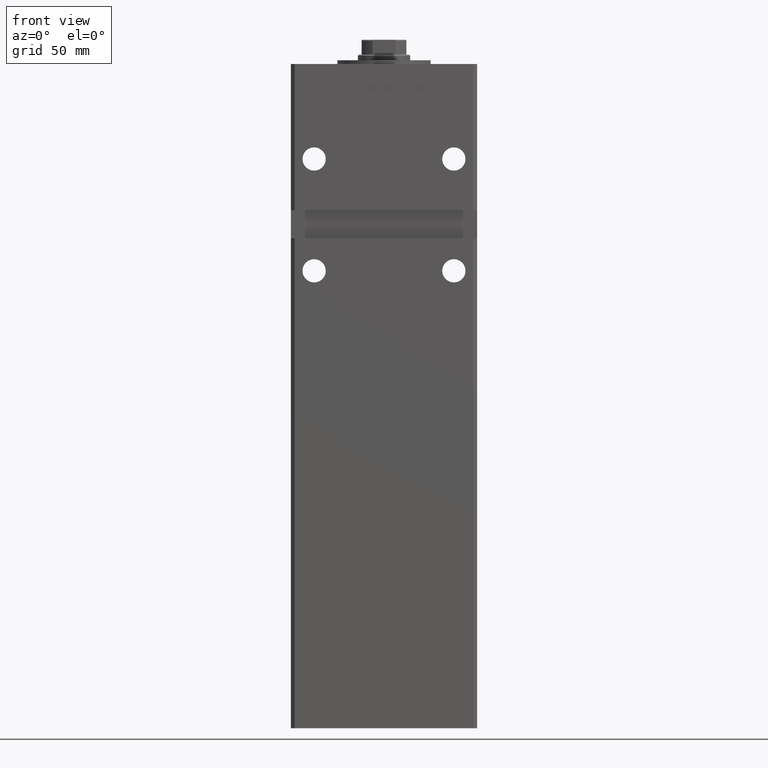
[diagram: clean part render]
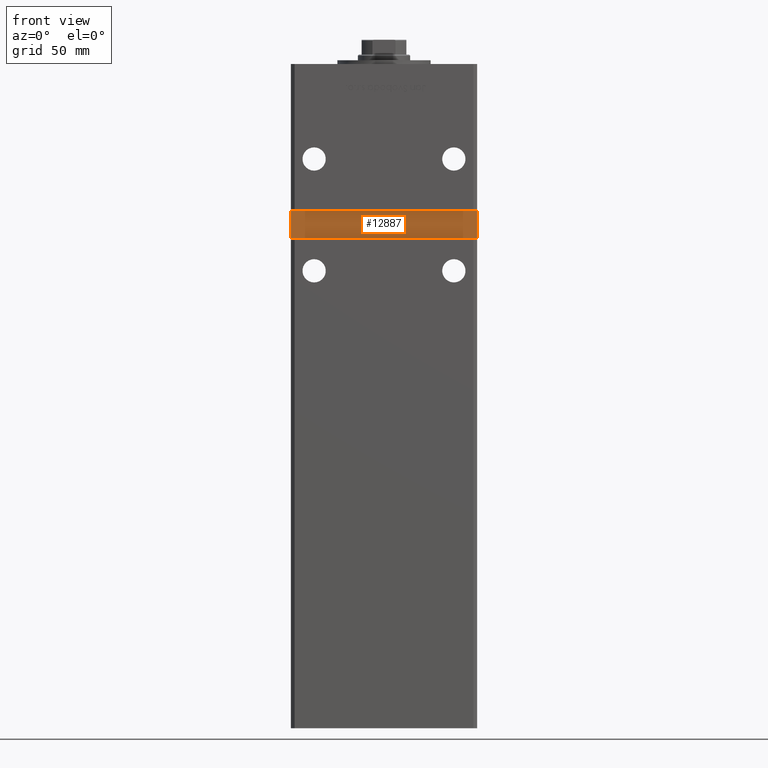
[diagram: same view with one face highlighted and labeled with its STEP entity id]
A machine part, front view. The second image highlights one B-rep face of the part: STEP entity #12887.
In plain terms, the highlighted planar face has unit normal (0, -1, 0).
Its self-contained STEP definition (entity closure, byte-faithful):
#17 = CARTESIAN_POINT ( 'NONE',  ( 0.000000000000000000, -38.50000000000000000, 0.000000000000000000 ) ) ;
#677 = VERTEX_POINT ( 'NONE', #35989 ) ;
#2220 = ORIENTED_EDGE ( 'NONE', *, *, #32551, .T. ) ;
#3829 = VECTOR ( 'NONE', #29582, 1000.000000000000000 ) ;
#3933 = EDGE_CURVE ( 'NONE', #50208, #16414, #38137, .T. ) ;
#4052 = FACE_OUTER_BOUND ( 'NONE', #53124, .T. ) ;
#5809 = EDGE_CURVE ( 'NONE', #9020, #677, #13158, .T. ) ;
#9020 = VERTEX_POINT ( 'NONE', #44010 ) ;
#11464 = VECTOR ( 'NONE', #13637, 1000.000000000000000 ) ;
#12887 = ADVANCED_FACE ( 'NONE', ( #4052 ), #12910, .T. ) ;
#12910 = PLANE ( 'NONE',  #46008 ) ;
#13158 = LINE ( 'NONE', #37139, #3829 ) ;
#13637 = DIRECTION ( 'NONE',  ( 0.000000000000000000, 0.000000000000000000, -1.000000000000000000 ) ) ;
#14602 = LINE ( 'NONE', #47455, #15330 ) ;
#15330 = VECTOR ( 'NONE', #18904, 1000.000000000000000 ) ;
#16328 = LINE ( 'NONE', #37328, #25114 ) ;
#16412 = DIRECTION ( 'NONE',  ( 0.000000000000000000, -0.000000000000000000, -1.000000000000000000 ) ) ;
#16414 = VERTEX_POINT ( 'NONE', #40232 ) ;
#18904 = DIRECTION ( 'NONE',  ( 1.000000000000000000, 0.000000000000000000, 0.000000000000000000 ) ) ;
#19115 = CARTESIAN_POINT ( 'NONE',  ( -49.99999999999998579, -38.50000000000000000, 259.0000000000000000 ) ) ;
#22076 = EDGE_CURVE ( 'NONE', #16414, #9020, #14602, .T. ) ;
#25114 = VECTOR ( 'NONE', #32495, 1000.000000000000000 ) ;
#29582 = DIRECTION ( 'NONE',  ( -0.000000000000000000, -0.000000000000000000, 1.000000000000000000 ) ) ;
#32495 = DIRECTION ( 'NONE',  ( -1.000000000000000000, -0.000000000000000000, -0.000000000000000000 ) ) ;
#32551 = EDGE_CURVE ( 'NONE', #677, #50208, #16328, .T. ) ;
#34102 = CARTESIAN_POINT ( 'NONE',  ( -49.99999999999998579, -38.50000000000000000, 259.0000000000000000 ) ) ;
#35846 = ORIENTED_EDGE ( 'NONE', *, *, #22076, .T. ) ;
#35989 = CARTESIAN_POINT ( 'NONE',  ( 49.99999999999998579, -38.50000000000000000, 259.0000000000000000 ) ) ;
#36891 = DIRECTION ( 'NONE',  ( 0.000000000000000000, -1.000000000000000000, 0.000000000000000000 ) ) ;
#37139 = CARTESIAN_POINT ( 'NONE',  ( 49.99999999999998579, -38.50000000000000000, 259.0000000000000000 ) ) ;
#37328 = CARTESIAN_POINT ( 'NONE',  ( -49.99999999999998579, -38.50000000000000000, 259.0000000000000000 ) ) ;
#38137 = LINE ( 'NONE', #34102, #11464 ) ;
#40232 = CARTESIAN_POINT ( 'NONE',  ( -49.99999999999998579, -38.50000000000000000, 244.0000000000000000 ) ) ;
#44010 = CARTESIAN_POINT ( 'NONE',  ( 49.99999999999998579, -38.49999999999999289, 244.0000000000000000 ) ) ;
#46008 = AXIS2_PLACEMENT_3D ( 'NONE', #17, #36891, #16412 ) ;
#47455 = CARTESIAN_POINT ( 'NONE',  ( -49.99999999999998579, -38.50000000000000000, 244.0000000000000000 ) ) ;
#48507 = ORIENTED_EDGE ( 'NONE', *, *, #5809, .T. ) ;
#50208 = VERTEX_POINT ( 'NONE', #19115 ) ;
#50421 = ORIENTED_EDGE ( 'NONE', *, *, #3933, .T. ) ;
#53124 = EDGE_LOOP ( 'NONE', ( #48507, #2220, #50421, #35846 ) ) ;